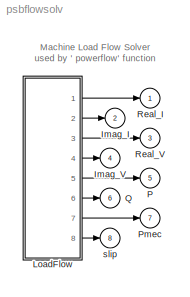
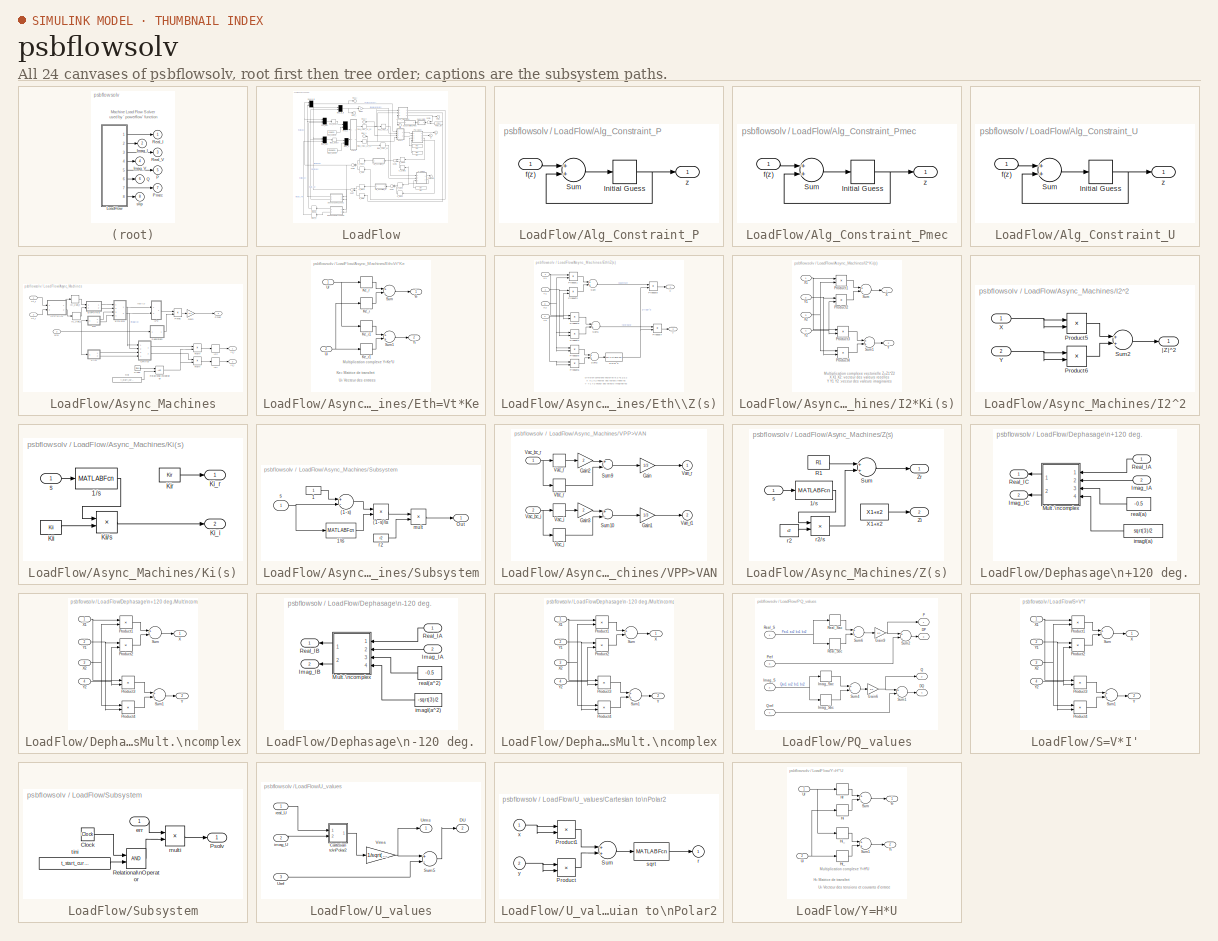
[diagram: thumbnail index - all 24 canvases of the model, root first then tree order]
MODEL psbflowsolv
KIND model
BLOCK [Outport] Imag_I
  IconDisplay = Port number
  InitialOutput = 0
  Port = 2
BLOCK [Outport] Imag_V
  IconDisplay = Port number
  InitialOutput = 0
  Port = 4
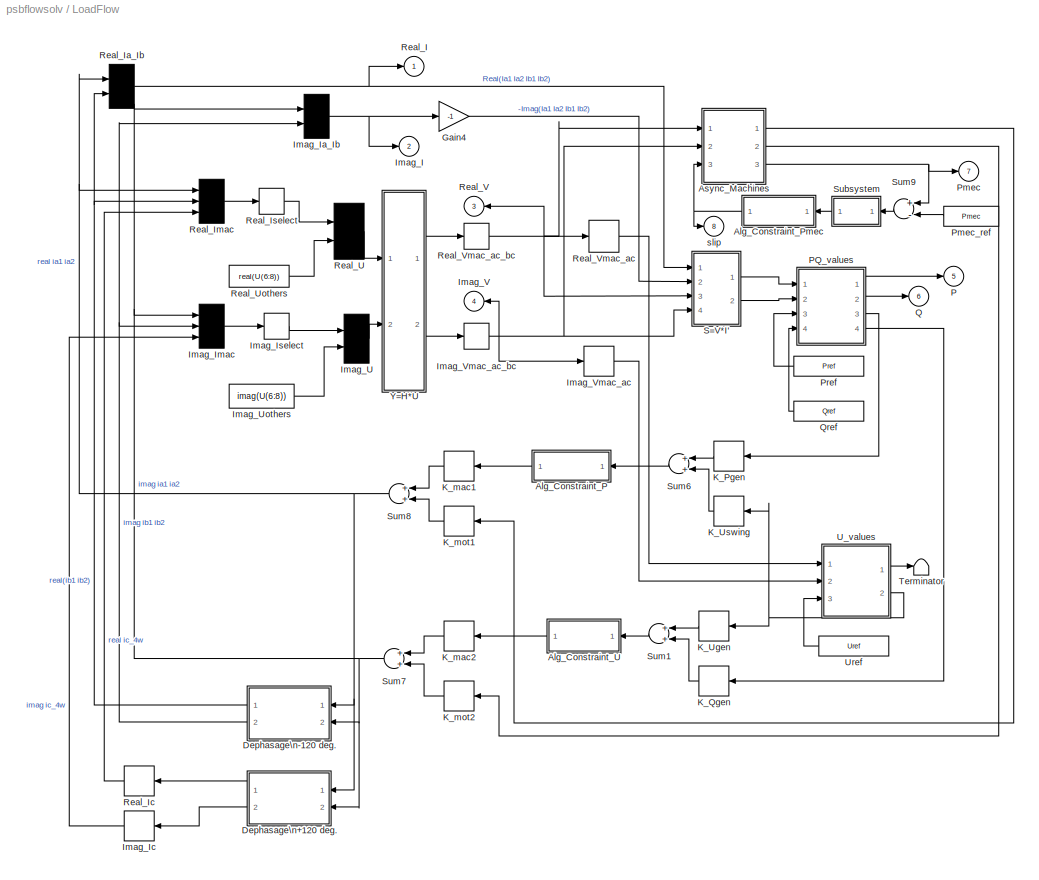
BLOCK [SubSystem] LoadFlow
  MinAlgLoopOccurrences = off
  Ports = [0, 8]
  RTWSystemCode = Auto
  TreatAsAtomicUnit = off
BLOCK [SubSystem] LoadFlow/Alg_Constraint_P
  MaskDescription = Constrains input signal f(z) to zero and outputs an algebraic state z. This block outputs the value necessary to produce a zero at the input. The output must affect the input through some feedback path. Provide an initial guess of the output to improve algebraic loop solver efficiency.  <repeated x3 — deduplicated; at blocks: Alg_Constraint_P, Alg_Constraint_Pmec, Alg_Constraint_U>
  MaskDisplay = disp('Solve\\nf(z) = 0')
  MaskEnableString = on
  MaskHelp = This block outputs the value necessary to produce a zero at the input. The output must affect the input through some feedback path. This allows you to specify algebraic equations for index 1 differential/algebraic systems (DAE's).\n                                                                                                                                                                        ...<+230ch>  <repeated x3 — deduplicated; at blocks: Alg_Constraint_P, Alg_Constraint_Pmec, Alg_Constraint_U>
  MaskIconFrame = on
  MaskIconOpaque = off
  MaskIconRotate = none
  MaskIconUnits = autoscale
  MaskPromptString = Initial guess:
  MaskStyleString = edit
  MaskToolTipString = on
  MaskTunableValueString = on
  MaskType = Algebraic Constraint
  MaskValueString = real_current_guess
  MaskVariables = z0=@1;
  MaskVisibilityString = on
  MinAlgLoopOccurrences = off
  Ports = [1, 1]
  RTWSystemCode = Auto
  TreatAsAtomicUnit = off
BLOCK [InitialCondition] LoadFlow/Alg_Constraint_P/Initial Guess
  Value = z0
BLOCK [Sum] LoadFlow/Alg_Constraint_P/Sum
  Ports = [2, 1]
BLOCK [Inport] LoadFlow/Alg_Constraint_P/f(z)
  IconDisplay = Port number
  LatchInput = off
  Port = 1
BLOCK [Outport] LoadFlow/Alg_Constraint_P/z
  IconDisplay = Port number
  InitialOutput = 0
BLOCK [SubSystem] LoadFlow/Alg_Constraint_Pmec
  MaskDisplay = disp('Solve\\nf(z) = 0')
  MaskEnableString = on
  MaskIconFrame = on
  MaskIconOpaque = off
  MaskIconRotate = none
  MaskIconUnits = autoscale
  MaskPromptString = Initial guess:
  MaskStyleString = edit
  MaskToolTipString = on
  MaskTunableValueString = on
  MaskType = Algebraic Constraint
  MaskValueString = slip_guess
  MaskVariables = z0=@1;
  MaskVisibilityString = on
  MinAlgLoopOccurrences = off
  Ports = [1, 1]
  RTWSystemCode = Auto
  TreatAsAtomicUnit = off
BLOCK [InitialCondition] LoadFlow/Alg_Constraint_Pmec/Initial Guess
  Value = z0
BLOCK [Sum] LoadFlow/Alg_Constraint_Pmec/Sum
  Ports = [2, 1]
BLOCK [Inport] LoadFlow/Alg_Constraint_Pmec/f(z)
  IconDisplay = Port number
  LatchInput = off
  Port = 1
BLOCK [Outport] LoadFlow/Alg_Constraint_Pmec/z
  IconDisplay = Port number
  InitialOutput = 0
BLOCK [SubSystem] LoadFlow/Alg_Constraint_U
  MaskDisplay = disp('Solve\\nf(z) = 0')
  MaskEnableString = on
  MaskIconFrame = on
  MaskIconOpaque = off
  MaskIconRotate = none
  MaskIconUnits = autoscale
  MaskPromptString = Initial guess:
  MaskStyleString = edit
  MaskToolTipString = on
  MaskTunableValueString = on
  MaskType = Algebraic Constraint
  MaskValueString = imag_current_guess
  MaskVariables = z0=@1;
  MaskVisibilityString = on
  MinAlgLoopOccurrences = off
  Ports = [1, 1]
  RTWSystemCode = Auto
  TreatAsAtomicUnit = off
BLOCK [InitialCondition] LoadFlow/Alg_Constraint_U/Initial Guess
  Value = z0
BLOCK [Sum] LoadFlow/Alg_Constraint_U/Sum
  Ports = [2, 1]
BLOCK [Inport] LoadFlow/Alg_Constraint_U/f(z)
  IconDisplay = Port number
  LatchInput = off
  Port = 1
BLOCK [Outport] LoadFlow/Alg_Constraint_U/z
  IconDisplay = Port number
  InitialOutput = 0
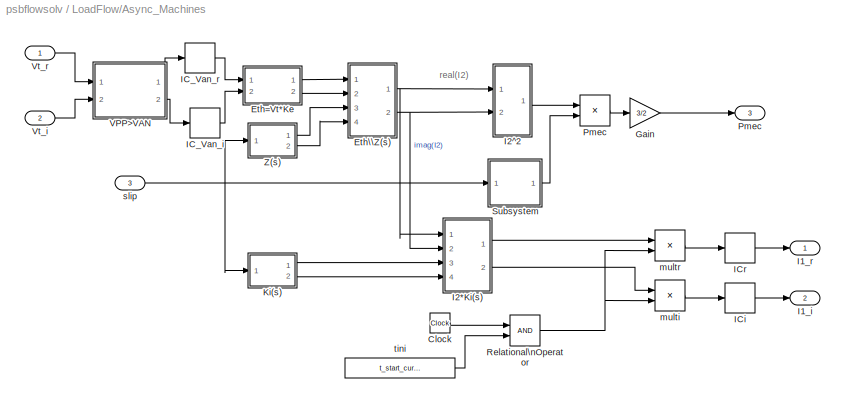
BLOCK [SubSystem] LoadFlow/Async_Machines
  MinAlgLoopOccurrences = off
  Ports = [3, 3]
  RTWSystemCode = Auto
  TreatAsAtomicUnit = off
BLOCK [Clock] LoadFlow/Async_Machines/Clock
  Decimation = 10
BLOCK [SubSystem] LoadFlow/Async_Machines/Eth=Vt*Ke
  MaskDisplay = disp('Y=H*U')
  MaskIconFrame = on
  MaskIconOpaque = off
  MaskIconRotate = none
  MaskIconUnits = autoscale
  MinAlgLoopOccurrences = off
  Ports = [2, 2]
  RTWSystemCode = Auto
  TreatAsAtomicUnit = off
BLOCK [StateSpace] LoadFlow/Async_Machines/Eth=Vt*Ke/Ke_i
  A = []
  B = []
  C = []
  D = K
  MaskDescription = Matrix Gain.
  MaskDisplay = disp('K')
  MaskEnableString = on
  MaskHelp = Multiplies input vector by entered matrix to produce output vector (y=Au).
  MaskIconFrame = on
  MaskIconOpaque = on
  MaskIconRotate = none
  MaskIconUnits = autoscale
  MaskInitialization = K=@1;
  MaskPromptString = Gain matrix:
  MaskStyleString = edit
  MaskToolTipString = on
  MaskTunableValueString = on
  MaskType = Matrix Gain
  MaskValueString = imag(Ke)
  MaskVisibilityString = on
BLOCK [StateSpace] LoadFlow/Async_Machines/Eth=Vt*Ke/Ke_i1
  A = []
  B = []
  C = []
  D = K
  MaskDescription = Matrix Gain.
  MaskDisplay = disp('K')
  MaskEnableString = on
  MaskHelp = Multiplies input vector by entered matrix to produce output vector (y=Au).
  MaskIconFrame = on
  MaskIconOpaque = on
  MaskIconRotate = none
  MaskIconUnits = autoscale
  MaskInitialization = K=@1;
  MaskPromptString = Gain matrix:
  MaskStyleString = edit
  MaskToolTipString = on
  MaskTunableValueString = on
  MaskType = Matrix Gain
  MaskValueString = imag(Ke)
  MaskVisibilityString = on
BLOCK [StateSpace] LoadFlow/Async_Machines/Eth=Vt*Ke/Ke_r
  A = []
  B = []
  C = []
  D = K
  MaskDescription = Matrix Gain.
  MaskDisplay = disp('K')
  MaskEnableString = on
  MaskHelp = Multiplies input vector by entered matrix to produce output vector (y=Au).
  MaskIconFrame = on
  MaskIconOpaque = on
  MaskIconRotate = none
  MaskIconUnits = autoscale
  MaskInitialization = K=@1;
  MaskPromptString = Gain matrix:
  MaskStyleString = edit
  MaskToolTipString = on
  MaskTunableValueString = on
  MaskType = Matrix Gain
  MaskValueString = real(Ke)
  MaskVisibilityString = on
BLOCK [StateSpace] LoadFlow/Async_Machines/Eth=Vt*Ke/Ke_r1
  A = []
  B = []
  C = []
  D = K
  MaskDescription = Matrix Gain.
  MaskDisplay = disp('K')
  MaskEnableString = on
  MaskHelp = Multiplies input vector by entered matrix to produce output vector (y=Au).
  MaskIconFrame = on
  MaskIconOpaque = on
  MaskIconRotate = none
  MaskIconUnits = autoscale
  MaskInitialization = K=@1;
  MaskPromptString = Gain matrix:
  MaskStyleString = edit
  MaskToolTipString = on
  MaskTunableValueString = on
  MaskType = Matrix Gain
  MaskValueString = real(Ke)
  MaskVisibilityString = on
BLOCK [Sum] LoadFlow/Async_Machines/Eth=Vt*Ke/Sum
  Inputs = +-
  Ports = [2, 1]
BLOCK [Sum] LoadFlow/Async_Machines/Eth=Vt*Ke/Sum1
  Ports = [2, 1]
BLOCK [Inport] LoadFlow/Async_Machines/Eth=Vt*Ke/Ui
  IconDisplay = Port number
  LatchInput = off
  Port = 2
BLOCK [Inport] LoadFlow/Async_Machines/Eth=Vt*Ke/Ur
  IconDisplay = Port number
  LatchInput = off
  Port = 1
BLOCK [Outport] LoadFlow/Async_Machines/Eth=Vt*Ke/Yi
  IconDisplay = Port number
  InitialOutput = 0
  Port = 2
BLOCK [Outport] LoadFlow/Async_Machines/Eth=Vt*Ke/Yr
  IconDisplay = Port number
  InitialOutput = 0
BLOCK [SubSystem] LoadFlow/Async_Machines/Eth\\Z(s)
  MaskDisplay = disp('Z1./Z2')
  MaskIconFrame = on
  MaskIconOpaque = off
  MaskIconRotate = none
  MaskIconUnits = autoscale
  MinAlgLoopOccurrences = off
  Ports = [4, 2]
  RTWSystemCode = Auto
  TreatAsAtomicUnit = off
BLOCK [MATLABFcn] LoadFlow/Async_Machines/Eth\\Z(s)/1//|Z2|^2
  MATLABFcn = 1./u
BLOCK [Product] LoadFlow/Async_Machines/Eth\\Z(s)/Product1
  Ports = [2, 1]
  RndMeth = Floor
BLOCK [Product] LoadFlow/Async_Machines/Eth\\Z(s)/Product2
  Ports = [2, 1]
  RndMeth = Floor
BLOCK [Product] LoadFlow/Async_Machines/Eth\\Z(s)/Product3
  Ports = [2, 1]
  RndMeth = Floor
BLOCK [Product] LoadFlow/Async_Machines/Eth\\Z(s)/Product4
  Ports = [2, 1]
  RndMeth = Floor
BLOCK [Product] LoadFlow/Async_Machines/Eth\\Z(s)/Product5
  Ports = [2, 1]
  RndMeth = Floor
BLOCK [Product] LoadFlow/Async_Machines/Eth\\Z(s)/Product6
  Ports = [2, 1]
  RndMeth = Floor
BLOCK [Product] LoadFlow/Async_Machines/Eth\\Z(s)/Product7
  Ports = [2, 1]
  RndMeth = Floor
BLOCK [Product] LoadFlow/Async_Machines/Eth\\Z(s)/Product8
  Ports = [2, 1]
  RndMeth = Floor
BLOCK [Sum] LoadFlow/Async_Machines/Eth\\Z(s)/Sum
  Ports = [2, 1]
BLOCK [Sum] LoadFlow/Async_Machines/Eth\\Z(s)/Sum1
  Inputs = -+
  Ports = [2, 1]
BLOCK [Sum] LoadFlow/Async_Machines/Eth\\Z(s)/Sum2
  Ports = [2, 1]
BLOCK [Outport] LoadFlow/Async_Machines/Eth\\Z(s)/X
  IconDisplay = Port number
  InitialOutput = 0
BLOCK [Inport] LoadFlow/Async_Machines/Eth\\Z(s)/X1
  IconDisplay = Port number
  LatchInput = off
  Port = 1
BLOCK [Inport] LoadFlow/Async_Machines/Eth\\Z(s)/X2
  IconDisplay = Port number
  LatchInput = off
  Port = 3
BLOCK [Outport] LoadFlow/Async_Machines/Eth\\Z(s)/Y
  IconDisplay = Port number
  InitialOutput = 0
  Port = 2
BLOCK [Inport] LoadFlow/Async_Machines/Eth\\Z(s)/Y1
  IconDisplay = Port number
  LatchInput = off
  Port = 2
BLOCK [Inport] LoadFlow/Async_Machines/Eth\\Z(s)/Y2
  IconDisplay = Port number
  LatchInput = off
  Port = 4
BLOCK [Gain] LoadFlow/Async_Machines/Gain
  Gain = 3/2
BLOCK [Outport] LoadFlow/Async_Machines/I1_i
  IconDisplay = Port number
  InitialOutput = 0
  Port = 2
BLOCK [Outport] LoadFlow/Async_Machines/I1_r
  IconDisplay = Port number
  InitialOutput = 0
BLOCK [SubSystem] LoadFlow/Async_Machines/I2*Ki(s)
  MaskDisplay = disp('Z1.*Z2')
  MaskIconFrame = on
  MaskIconOpaque = off
  MaskIconRotate = none
  MaskIconUnits = autoscale
  MinAlgLoopOccurrences = off
  Ports = [4, 2]
  RTWSystemCode = Auto
  TreatAsAtomicUnit = off
BLOCK [Product] LoadFlow/Async_Machines/I2*Ki(s)/Product1
  Ports = [2, 1]
  RndMeth = Floor
BLOCK [Product] LoadFlow/Async_Machines/I2*Ki(s)/Product2
  Ports = [2, 1]
  RndMeth = Floor
BLOCK [Product] LoadFlow/Async_Machines/I2*Ki(s)/Product3
  Ports = [2, 1]
  RndMeth = Floor
BLOCK [Product] LoadFlow/Async_Machines/I2*Ki(s)/Product4
  Ports = [2, 1]
  RndMeth = Floor
BLOCK [Sum] LoadFlow/Async_Machines/I2*Ki(s)/Sum
  Inputs = +-
  Ports = [2, 1]
BLOCK [Sum] LoadFlow/Async_Machines/I2*Ki(s)/Sum1
  Ports = [2, 1]
BLOCK [Outport] LoadFlow/Async_Machines/I2*Ki(s)/X
  IconDisplay = Port number
  InitialOutput = 0
BLOCK [Inport] LoadFlow/Async_Machines/I2*Ki(s)/X1
  IconDisplay = Port number
  LatchInput = off
  Port = 1
BLOCK [Inport] LoadFlow/Async_Machines/I2*Ki(s)/X2
  IconDisplay = Port number
  LatchInput = off
  Port = 3
BLOCK [Outport] LoadFlow/Async_Machines/I2*Ki(s)/Y
  IconDisplay = Port number
  InitialOutput = 0
  Port = 2
BLOCK [Inport] LoadFlow/Async_Machines/I2*Ki(s)/Y1
  IconDisplay = Port number
  LatchInput = off
  Port = 2
BLOCK [Inport] LoadFlow/Async_Machines/I2*Ki(s)/Y2
  IconDisplay = Port number
  LatchInput = off
  Port = 4
BLOCK [SubSystem] LoadFlow/Async_Machines/I2^2
  MaskIconFrame = on
  MaskIconOpaque = off
  MaskIconRotate = none
  MaskIconUnits = autoscale
  MinAlgLoopOccurrences = off
  Ports = [2, 1]
  RTWSystemCode = Auto
  TreatAsAtomicUnit = off
BLOCK [Product] LoadFlow/Async_Machines/I2^2/Product5
  Ports = [2, 1]
  RndMeth = Floor
BLOCK [Product] LoadFlow/Async_Machines/I2^2/Product6
  Ports = [2, 1]
  RndMeth = Floor
BLOCK [Sum] LoadFlow/Async_Machines/I2^2/Sum2
  Ports = [2, 1]
BLOCK [Inport] LoadFlow/Async_Machines/I2^2/X
  IconDisplay = Port number
  LatchInput = off
  Port = 1
BLOCK [Inport] LoadFlow/Async_Machines/I2^2/Y
  IconDisplay = Port number
  LatchInput = off
  Port = 2
BLOCK [Outport] LoadFlow/Async_Machines/I2^2/|Z|^2
  IconDisplay = Port number
  InitialOutput = 0
BLOCK [InitialCondition] LoadFlow/Async_Machines/IC_Van_i
  Value = imag_Van_init
BLOCK [InitialCondition] LoadFlow/Async_Machines/IC_Van_r
  Value = real_Van_init
BLOCK [InitialCondition] LoadFlow/Async_Machines/ICi
  Value = 0
BLOCK [InitialCondition] LoadFlow/Async_Machines/ICr
  Value = 0
BLOCK [SubSystem] LoadFlow/Async_Machines/Ki(s)
  MinAlgLoopOccurrences = off
  Ports = [1, 2]
  RTWSystemCode = Auto
  TreatAsAtomicUnit = off
BLOCK [MATLABFcn] LoadFlow/Async_Machines/Ki(s)/1//s
  MATLABFcn = 1./u
BLOCK [Outport] LoadFlow/Async_Machines/Ki(s)/Ki_i
  IconDisplay = Port number
  InitialOutput = 0
  Port = 2
BLOCK [Outport] LoadFlow/Async_Machines/Ki(s)/Ki_r
  IconDisplay = Port number
  InitialOutput = 0
BLOCK [Constant] LoadFlow/Async_Machines/Ki(s)/Kii
  Value = Kii
BLOCK [Product] LoadFlow/Async_Machines/Ki(s)/Kii//s
  Ports = [2, 1]
  RndMeth = Floor
BLOCK [Constant] LoadFlow/Async_Machines/Ki(s)/Kir
  Value = Kir
BLOCK [Inport] LoadFlow/Async_Machines/Ki(s)/s
  IconDisplay = Port number
  LatchInput = off
  Port = 1
BLOCK [Outport] LoadFlow/Async_Machines/Pmec
  IconDisplay = Port number
  InitialOutput = 0
  Port = 3
BLOCK [Product] LoadFlow/Async_Machines/Pmec 
  Ports = [2, 1]
  RndMeth = Floor
BLOCK [RelationalOperator] LoadFlow/Async_Machines/Relational\nOperator
BLOCK [SubSystem] LoadFlow/Async_Machines/Subsystem
  MaskDisplay = disp('r2(1-s)/s')
  MaskIconFrame = on
  MaskIconOpaque = on
  MaskIconRotate = none
  MaskIconUnits = autoscale
  MinAlgLoopOccurrences = off
  Ports = [1, 1]
  RTWSystemCode = Auto
  TreatAsAtomicUnit = off
BLOCK [Sum] LoadFlow/Async_Machines/Subsystem/(1-s)
  Inputs = +-
  Ports = [2, 1]
BLOCK [Product] LoadFlow/Async_Machines/Subsystem/(1-s)\\s
  Ports = [2, 1]
  RndMeth = Floor
BLOCK [Constant] LoadFlow/Async_Machines/Subsystem/1
BLOCK [MATLABFcn] LoadFlow/Async_Machines/Subsystem/1\\s
  MATLABFcn = 1./u
BLOCK [Outport] LoadFlow/Async_Machines/Subsystem/Out
  IconDisplay = Port number
  InitialOutput = 0
BLOCK [Product] LoadFlow/Async_Machines/Subsystem/mult
  Ports = [2, 1]
  RndMeth = Floor
BLOCK [Constant] LoadFlow/Async_Machines/Subsystem/r2
  Value = r2
BLOCK [Inport] LoadFlow/Async_Machines/Subsystem/s
  IconDisplay = Port number
  LatchInput = off
  Port = 1
BLOCK [SubSystem] LoadFlow/Async_Machines/VPP>VAN
  MinAlgLoopOccurrences = off
  Ports = [2, 2]
  RTWSystemCode = Auto
  TreatAsAtomicUnit = off
BLOCK [Gain] LoadFlow/Async_Machines/VPP>VAN/Gain
  Gain = 1/3
BLOCK [Gain] LoadFlow/Async_Machines/VPP>VAN/Gain1
  Gain = 1/3
BLOCK [Gain] LoadFlow/Async_Machines/VPP>VAN/Gain2
  Gain = 2
BLOCK [Gain] LoadFlow/Async_Machines/VPP>VAN/Gain3
  Gain = 2
BLOCK [Sum] LoadFlow/Async_Machines/VPP>VAN/Sum10
  Inputs = +-
  Ports = [2, 1]
BLOCK [Sum] LoadFlow/Async_Machines/VPP>VAN/Sum9
  Inputs = +-
  Ports = [2, 1]
BLOCK [Inport] LoadFlow/Async_Machines/VPP>VAN/Vac_bc_i
  IconDisplay = Port number
  LatchInput = off
  Port = 2
BLOCK [Inport] LoadFlow/Async_Machines/VPP>VAN/Vac_bc_r
  IconDisplay = Port number
  LatchInput = off
  Port = 1
BLOCK [Selector] LoadFlow/Async_Machines/VPP>VAN/Vac_i
  Elements = 1:2
  InputPortWidth = 4
  Ports = [1, 1]
BLOCK [Selector] LoadFlow/Async_Machines/VPP>VAN/Vac_r
  Elements = 1:2
  InputPortWidth = 4
  Ports = [1, 1]
BLOCK [Outport] LoadFlow/Async_Machines/VPP>VAN/Van_r
  IconDisplay = Port number
  InitialOutput = 0
BLOCK [Outport] LoadFlow/Async_Machines/VPP>VAN/Van_r1
  IconDisplay = Port number
  InitialOutput = 0
  Port = 2
BLOCK [Selector] LoadFlow/Async_Machines/VPP>VAN/Vbc_i
  Elements = 3:4
  InputPortWidth = 4
  Ports = [1, 1]
BLOCK [Selector] LoadFlow/Async_Machines/VPP>VAN/Vbc_r
  Elements = 3:4
  InputPortWidth = 4
  Ports = [1, 1]
BLOCK [Inport] LoadFlow/Async_Machines/Vt_i
  IconDisplay = Port number
  LatchInput = off
  Port = 2
BLOCK [Inport] LoadFlow/Async_Machines/Vt_r
  IconDisplay = Port number
  LatchInput = off
  Port = 1
BLOCK [SubSystem] LoadFlow/Async_Machines/Z(s)
  MinAlgLoopOccurrences = off
  Ports = [1, 2]
  RTWSystemCode = Auto
  TreatAsAtomicUnit = off
BLOCK [MATLABFcn] LoadFlow/Async_Machines/Z(s)/1//s
  MATLABFcn = 1./u
BLOCK [Constant] LoadFlow/Async_Machines/Z(s)/R1
  Value = R1
BLOCK [Sum] LoadFlow/Async_Machines/Z(s)/Sum
  Ports = [2, 1]
BLOCK [Constant] LoadFlow/Async_Machines/Z(s)/X1+x2
  Value = X1+x2
BLOCK [Outport] LoadFlow/Async_Machines/Z(s)/Zi
  IconDisplay = Port number
  InitialOutput = 0
  Port = 2
BLOCK [Outport] LoadFlow/Async_Machines/Z(s)/Zr
  IconDisplay = Port number
  InitialOutput = 0
BLOCK [Constant] LoadFlow/Async_Machines/Z(s)/r2
  Value = r2
BLOCK [Product] LoadFlow/Async_Machines/Z(s)/r2//s
  Ports = [2, 1]
  RndMeth = Floor
BLOCK [Inport] LoadFlow/Async_Machines/Z(s)/s
  IconDisplay = Port number
  LatchInput = off
  Port = 1
BLOCK [Product] LoadFlow/Async_Machines/multi 
  Ports = [2, 1]
  RndMeth = Floor
BLOCK [Product] LoadFlow/Async_Machines/multr
  Ports = [2, 1]
  RndMeth = Floor
BLOCK [Inport] LoadFlow/Async_Machines/slip
  IconDisplay = Port number
  LatchInput = off
  Port = 3
BLOCK [Constant] LoadFlow/Async_Machines/tini
  Value = t_start_current_mot
BLOCK [SubSystem] LoadFlow/Dephasage\n+120 deg.
  MinAlgLoopOccurrences = off
  Ports = [2, 2]
  RTWSystemCode = Auto
  TreatAsAtomicUnit = off
BLOCK [Inport] LoadFlow/Dephasage\n+120 deg./Imag_IA
  IconDisplay = Port number
  LatchInput = off
  Port = 2
BLOCK [Outport] LoadFlow/Dephasage\n+120 deg./Imag_IC 
  IconDisplay = Port number
  InitialOutput = 0
  Port = 2
BLOCK [SubSystem] LoadFlow/Dephasage\n+120 deg./Mult.\ncomplex
  MaskDisplay = disp('Z1.*Z2')
  MaskIconFrame = on
  MaskIconOpaque = off
  MaskIconRotate = none
  MaskIconUnits = autoscale
  MinAlgLoopOccurrences = off
  Ports = [4, 2]
  RTWSystemCode = Auto
  TreatAsAtomicUnit = off
BLOCK [Product] LoadFlow/Dephasage\n+120 deg./Mult.\ncomplex/Product1
  Ports = [2, 1]
  RndMeth = Floor
BLOCK [Product] LoadFlow/Dephasage\n+120 deg./Mult.\ncomplex/Product2
  Ports = [2, 1]
  RndMeth = Floor
BLOCK [Product] LoadFlow/Dephasage\n+120 deg./Mult.\ncomplex/Product3
  Ports = [2, 1]
  RndMeth = Floor
BLOCK [Product] LoadFlow/Dephasage\n+120 deg./Mult.\ncomplex/Product4
  Ports = [2, 1]
  RndMeth = Floor
BLOCK [Sum] LoadFlow/Dephasage\n+120 deg./Mult.\ncomplex/Sum
  Inputs = +-
  Ports = [2, 1]
BLOCK [Sum] LoadFlow/Dephasage\n+120 deg./Mult.\ncomplex/Sum1
  Ports = [2, 1]
BLOCK [Outport] LoadFlow/Dephasage\n+120 deg./Mult.\ncomplex/X
  IconDisplay = Port number
  InitialOutput = 0
BLOCK [Inport] LoadFlow/Dephasage\n+120 deg./Mult.\ncomplex/X1
  IconDisplay = Port number
  LatchInput = off
  Port = 1
BLOCK [Inport] LoadFlow/Dephasage\n+120 deg./Mult.\ncomplex/X2
  IconDisplay = Port number
  LatchInput = off
  Port = 3
BLOCK [Outport] LoadFlow/Dephasage\n+120 deg./Mult.\ncomplex/Y
  IconDisplay = Port number
  InitialOutput = 0
  Port = 2
BLOCK [Inport] LoadFlow/Dephasage\n+120 deg./Mult.\ncomplex/Y1
  IconDisplay = Port number
  LatchInput = off
  Port = 2
BLOCK [Inport] LoadFlow/Dephasage\n+120 deg./Mult.\ncomplex/Y2
  IconDisplay = Port number
  LatchInput = off
  Port = 4
BLOCK [Inport] LoadFlow/Dephasage\n+120 deg./Real_IA
  IconDisplay = Port number
  LatchInput = off
  Port = 1
BLOCK [Outport] LoadFlow/Dephasage\n+120 deg./Real_IC 
  IconDisplay = Port number
  InitialOutput = 0
BLOCK [Constant] LoadFlow/Dephasage\n+120 deg./imagl(a)
  Value = sqrt(3)/2
BLOCK [Constant] LoadFlow/Dephasage\n+120 deg./real(a)
  Value = -0.5
BLOCK [SubSystem] LoadFlow/Dephasage\n-120 deg.
  MinAlgLoopOccurrences = off
  Ports = [2, 2]
  RTWSystemCode = Auto
  TreatAsAtomicUnit = off
BLOCK [Inport] LoadFlow/Dephasage\n-120 deg./Imag_IA
  IconDisplay = Port number
  LatchInput = off
  Port = 2
BLOCK [Outport] LoadFlow/Dephasage\n-120 deg./Imag_IB 
  IconDisplay = Port number
  InitialOutput = 0
  Port = 2
BLOCK [SubSystem] LoadFlow/Dephasage\n-120 deg./Mult.\ncomplex
  MaskDisplay = disp('Z1.*Z2')
  MaskIconFrame = on
  MaskIconOpaque = off
  MaskIconRotate = none
  MaskIconUnits = autoscale
  MinAlgLoopOccurrences = off
  Ports = [4, 2]
  RTWSystemCode = Auto
  TreatAsAtomicUnit = off
BLOCK [Product] LoadFlow/Dephasage\n-120 deg./Mult.\ncomplex/Product1
  Ports = [2, 1]
  RndMeth = Floor
BLOCK [Product] LoadFlow/Dephasage\n-120 deg./Mult.\ncomplex/Product2
  Ports = [2, 1]
  RndMeth = Floor
BLOCK [Product] LoadFlow/Dephasage\n-120 deg./Mult.\ncomplex/Product3
  Ports = [2, 1]
  RndMeth = Floor
BLOCK [Product] LoadFlow/Dephasage\n-120 deg./Mult.\ncomplex/Product4
  Ports = [2, 1]
  RndMeth = Floor
BLOCK [Sum] LoadFlow/Dephasage\n-120 deg./Mult.\ncomplex/Sum
  Inputs = +-
  Ports = [2, 1]
BLOCK [Sum] LoadFlow/Dephasage\n-120 deg./Mult.\ncomplex/Sum1
  Ports = [2, 1]
BLOCK [Outport] LoadFlow/Dephasage\n-120 deg./Mult.\ncomplex/X
  IconDisplay = Port number
  InitialOutput = 0
BLOCK [Inport] LoadFlow/Dephasage\n-120 deg./Mult.\ncomplex/X1
  IconDisplay = Port number
  LatchInput = off
  Port = 1
BLOCK [Inport] LoadFlow/Dephasage\n-120 deg./Mult.\ncomplex/X2
  IconDisplay = Port number
  LatchInput = off
  Port = 3
BLOCK [Outport] LoadFlow/Dephasage\n-120 deg./Mult.\ncomplex/Y
  IconDisplay = Port number
  InitialOutput = 0
  Port = 2
BLOCK [Inport] LoadFlow/Dephasage\n-120 deg./Mult.\ncomplex/Y1
  IconDisplay = Port number
  LatchInput = off
  Port = 2
BLOCK [Inport] LoadFlow/Dephasage\n-120 deg./Mult.\ncomplex/Y2
  IconDisplay = Port number
  LatchInput = off
  Port = 4
BLOCK [Inport] LoadFlow/Dephasage\n-120 deg./Real_IA
  IconDisplay = Port number
  LatchInput = off
  Port = 1
BLOCK [Outport] LoadFlow/Dephasage\n-120 deg./Real_IB 
  IconDisplay = Port number
  InitialOutput = 0
BLOCK [Constant] LoadFlow/Dephasage\n-120 deg./imagl(a^2)
  Value = -sqrt(3)/2
BLOCK [Constant] LoadFlow/Dephasage\n-120 deg./real(a^2)
  Value = -0.5
BLOCK [Gain] LoadFlow/Gain4
  Gain = -1
BLOCK [Outport] LoadFlow/Imag_I
  IconDisplay = Port number
  InitialOutput = 0
  Port = 2
BLOCK [Mux] LoadFlow/Imag_Ia_Ib
  Inputs = [2 2]
  Ports = [2, 1]
BLOCK [Selector] LoadFlow/Imag_Ic
  Elements = [1]
  InputPortWidth = 2
  Ports = [1, 1]
BLOCK [Mux] LoadFlow/Imag_Imac
  Inputs = [2 2 1]
  Ports = [3, 1]
BLOCK [Selector] LoadFlow/Imag_Iselect
  Elements = [1:5]
  InputPortWidth = 5
  Ports = [1, 1]
BLOCK [Mux] LoadFlow/Imag_U
  Inputs = [5 3]
  Ports = [2, 1]
BLOCK [Constant] LoadFlow/Imag_Uothers
  Value = imag(U(6:8))
BLOCK [Outport] LoadFlow/Imag_V
  IconDisplay = Port number
  InitialOutput = 0
  Port = 4
BLOCK [Selector] LoadFlow/Imag_Vmac_ac
  Elements = 1:2
  InputPortWidth = 4
  Ports = [1, 1]
BLOCK [Selector] LoadFlow/Imag_Vmac_ac_bc
  Elements = 1:4
  InputPortWidth = 9
  Ports = [1, 1]
BLOCK [StateSpace] LoadFlow/K_Pgen
  A = []
  B = []
  C = []
  D = K
  MaskDescription = Matrix Gain.
  MaskDisplay = disp('K')
  MaskEnableString = on
  MaskHelp = Multiplies input vector by entered matrix to produce output vector (y=Au).
  MaskIconFrame = on
  MaskIconOpaque = on
  MaskIconRotate = none
  MaskIconUnits = autoscale
  MaskInitialization = K=@1;
  MaskPromptString = Gain matrix:
  MaskStyleString = edit
  MaskToolTipString = on
  MaskTunableValueString = on
  MaskType = Matrix Gain
  MaskValueString = [0 0;0 1]
  MaskVisibilityString = on
BLOCK [StateSpace] LoadFlow/K_Qgen
  A = []
  B = []
  C = []
  D = K
  MaskDescription = Matrix Gain.
  MaskDisplay = disp('K')
  MaskEnableString = on
  MaskHelp = Multiplies input vector by entered matrix to produce output vector (y=Au).
  MaskIconFrame = on
  MaskIconOpaque = on
  MaskIconRotate = none
  MaskIconUnits = autoscale
  MaskInitialization = K=@1;
  MaskPromptString = Gain matrix:
  MaskStyleString = edit
  MaskToolTipString = on
  MaskTunableValueString = on
  MaskType = Matrix Gain
  MaskValueString = [0 0;0 1]
  MaskVisibilityString = on
BLOCK [StateSpace] LoadFlow/K_Ugen
  A = []
  B = []
  C = []
  D = K
  MaskDescription = Matrix Gain.
  MaskDisplay = disp('K')
  MaskEnableString = on
  MaskHelp = Multiplies input vector by entered matrix to produce output vector (y=Au).
  MaskIconFrame = on
  MaskIconOpaque = on
  MaskIconRotate = none
  MaskIconUnits = autoscale
  MaskInitialization = K=@1;
  MaskPromptString = Gain matrix:
  MaskStyleString = edit
  MaskToolTipString = on
  MaskTunableValueString = on
  MaskType = Matrix Gain
  MaskValueString = [0 0;0 0]
  MaskVisibilityString = on
BLOCK [StateSpace] LoadFlow/K_Uswing
  A = []
  B = []
  C = []
  D = K
  MaskDescription = Matrix Gain.
  MaskDisplay = disp('K')
  MaskEnableString = on
  MaskHelp = Multiplies input vector by entered matrix to produce output vector (y=Au).
  MaskIconFrame = on
  MaskIconOpaque = on
  MaskIconRotate = none
  MaskIconUnits = autoscale
  MaskInitialization = K=@1;
  MaskPromptString = Gain matrix:
  MaskStyleString = edit
  MaskToolTipString = on
  MaskTunableValueString = on
  MaskType = Matrix Gain
  MaskValueString = [1 0;0 0]
  MaskVisibilityString = on
BLOCK [StateSpace] LoadFlow/K_mac1
  A = []
  B = []
  C = []
  D = K
  MaskDescription = Matrix Gain.
  MaskDisplay = disp('K')
  MaskEnableString = on
  MaskHelp = Multiplies input vector by entered matrix to produce output vector (y=Au).
  MaskIconFrame = on
  MaskIconOpaque = on
  MaskIconRotate = none
  MaskIconUnits = autoscale
  MaskInitialization = K=@1;
  MaskPromptString = Gain matrix:
  MaskStyleString = edit
  MaskToolTipString = on
  MaskTunableValueString = on
  MaskType = Matrix Gain
  MaskValueString = [1 0;0 1]
  MaskVisibilityString = on
BLOCK [StateSpace] LoadFlow/K_mac2
  A = []
  B = []
  C = []
  D = K
  MaskDescription = Matrix Gain.
  MaskDisplay = disp('K')
  MaskEnableString = on
  MaskHelp = Multiplies input vector by entered matrix to produce output vector (y=Au).
  MaskIconFrame = on
  MaskIconOpaque = on
  MaskIconRotate = none
  MaskIconUnits = autoscale
  MaskInitialization = K=@1;
  MaskPromptString = Gain matrix:
  MaskStyleString = edit
  MaskToolTipString = on
  MaskTunableValueString = on
  MaskType = Matrix Gain
  MaskValueString = [1 0;0 1]
  MaskVisibilityString = on
BLOCK [StateSpace] LoadFlow/K_mot1
  A = []
  B = []
  C = []
  D = K
  MaskDescription = Matrix Gain.
  MaskDisplay = disp('K')
  MaskEnableString = on
  MaskHelp = Multiplies input vector by entered matrix to produce output vector (y=Au).
  MaskIconFrame = on
  MaskIconOpaque = on
  MaskIconRotate = none
  MaskIconUnits = autoscale
  MaskInitialization = K=@1;
  MaskPromptString = Gain matrix:
  MaskStyleString = edit
  MaskToolTipString = on
  MaskTunableValueString = on
  MaskType = Matrix Gain
  MaskValueString = [0 0;0 0]
  MaskVisibilityString = on
BLOCK [StateSpace] LoadFlow/K_mot2
  A = []
  B = []
  C = []
  D = K
  MaskDescription = Matrix Gain.
  MaskDisplay = disp('K')
  MaskEnableString = on
  MaskHelp = Multiplies input vector by entered matrix to produce output vector (y=Au).
  MaskIconFrame = on
  MaskIconOpaque = on
  MaskIconRotate = none
  MaskIconUnits = autoscale
  MaskInitialization = K=@1;
  MaskPromptString = Gain matrix:
  MaskStyleString = edit
  MaskToolTipString = on
  MaskTunableValueString = on
  MaskType = Matrix Gain
  MaskValueString = [0 0;0 0]
  MaskVisibilityString = on
BLOCK [Outport] LoadFlow/P
  IconDisplay = Port number
  InitialOutput = 0
  Port = 5
BLOCK [SubSystem] LoadFlow/PQ_values
  MinAlgLoopOccurrences = off
  Ports = [4, 4]
  RTWSystemCode = Auto
  TreatAsAtomicUnit = off
BLOCK [Outport] LoadFlow/PQ_values/DP
  IconDisplay = Port number
  InitialOutput = 0
  Port = 3
BLOCK [Outport] LoadFlow/PQ_values/DQ
  IconDisplay = Port number
  InitialOutput = 0
  Port = 4
BLOCK [Gain] LoadFlow/PQ_values/Gain6
  Gain = 1/2
BLOCK [Gain] LoadFlow/PQ_values/Gain9
  Gain = 1/2
BLOCK [Inport] LoadFlow/PQ_values/Imag_S
  IconDisplay = Port number
  LatchInput = off
  Port = 2
BLOCK [Selector] LoadFlow/PQ_values/Imag_Sac
  Elements = 1:2
  InputPortWidth = 4
  Ports = [1, 1]
BLOCK [Selector] LoadFlow/PQ_values/Imag_Sbc
  Elements = 3:4
  InputPortWidth = 4
  Ports = [1, 1]
BLOCK [Outport] LoadFlow/PQ_values/P
  IconDisplay = Port number
  InitialOutput = 0
BLOCK [Inport] LoadFlow/PQ_values/Pref
  IconDisplay = Port number
  LatchInput = off
  Port = 3
BLOCK [Outport] LoadFlow/PQ_values/Q
  IconDisplay = Port number
  InitialOutput = 0
  Port = 2
BLOCK [Inport] LoadFlow/PQ_values/Qref
  IconDisplay = Port number
  LatchInput = off
  Port = 4
BLOCK [Inport] LoadFlow/PQ_values/Real_S
  IconDisplay = Port number
  LatchInput = off
  Port = 1
BLOCK [Selector] LoadFlow/PQ_values/Real_Sac
  Elements = 1:2
  InputPortWidth = 4
  Ports = [1, 1]
BLOCK [Selector] LoadFlow/PQ_values/Real_Sbc
  Elements = 3:4
  InputPortWidth = 4
  Ports = [1, 1]
BLOCK [Sum] LoadFlow/PQ_values/Sum1
  Inputs = +-
  Ports = [2, 1]
BLOCK [Sum] LoadFlow/PQ_values/Sum2
  Inputs = +-
  Ports = [2, 1]
BLOCK [Sum] LoadFlow/PQ_values/Sum4
  Ports = [2, 1]
BLOCK [Sum] LoadFlow/PQ_values/Sum6
  Ports = [2, 1]
BLOCK [Outport] LoadFlow/Pmec
  IconDisplay = Port number
  InitialOutput = 0
  Port = 7
BLOCK [Constant] LoadFlow/Pmec_ref
  Value = Pmec
BLOCK [Constant] LoadFlow/Pref
  Value = Pref
BLOCK [Outport] LoadFlow/Q
  IconDisplay = Port number
  InitialOutput = 0
  Port = 6
BLOCK [Constant] LoadFlow/Qref
  Value = Qref
BLOCK [Outport] LoadFlow/Real_I
  IconDisplay = Port number
  InitialOutput = 0
BLOCK [Mux] LoadFlow/Real_Ia_Ib
  Inputs = [2 2]
  Ports = [2, 1]
BLOCK [Selector] LoadFlow/Real_Ic
  Elements = [1]
  InputPortWidth = 2
  Ports = [1, 1]
BLOCK [Mux] LoadFlow/Real_Imac
  Inputs = [2 2 1]
  Ports = [3, 1]
BLOCK [Selector] LoadFlow/Real_Iselect
  Elements = [1:5]
  InputPortWidth = 5
  Ports = [1, 1]
BLOCK [Mux] LoadFlow/Real_U
  Inputs = [5 3]
  Ports = [2, 1]
BLOCK [Constant] LoadFlow/Real_Uothers
  Value = real(U(6:8))
BLOCK [Outport] LoadFlow/Real_V
  IconDisplay = Port number
  InitialOutput = 0
  Port = 3
BLOCK [Selector] LoadFlow/Real_Vmac_ac
  Elements = 1:2
  InputPortWidth = 4
  Ports = [1, 1]
BLOCK [Selector] LoadFlow/Real_Vmac_ac_bc
  Elements = 1:4
  InputPortWidth = 9
  Ports = [1, 1]
BLOCK [SubSystem] LoadFlow/S=V*I'
  MaskDisplay = disp('Z1.*Z2')
  MaskIconFrame = on
  MaskIconOpaque = off
  MaskIconRotate = none
  MaskIconUnits = autoscale
  MinAlgLoopOccurrences = off
  Ports = [4, 2]
  RTWSystemCode = Auto
  TreatAsAtomicUnit = off
BLOCK [Product] LoadFlow/S=V*I'/Product1
  Ports = [2, 1]
  RndMeth = Floor
BLOCK [Product] LoadFlow/S=V*I'/Product2
  Ports = [2, 1]
  RndMeth = Floor
BLOCK [Product] LoadFlow/S=V*I'/Product3
  Ports = [2, 1]
  RndMeth = Floor
BLOCK [Product] LoadFlow/S=V*I'/Product4
  Ports = [2, 1]
  RndMeth = Floor
BLOCK [Sum] LoadFlow/S=V*I'/Sum
  Inputs = +-
  Ports = [2, 1]
BLOCK [Sum] LoadFlow/S=V*I'/Sum1
  Ports = [2, 1]
BLOCK [Outport] LoadFlow/S=V*I'/X
  IconDisplay = Port number
  InitialOutput = 0
BLOCK [Inport] LoadFlow/S=V*I'/X1
  IconDisplay = Port number
  LatchInput = off
  Port = 1
BLOCK [Inport] LoadFlow/S=V*I'/X2
  IconDisplay = Port number
  LatchInput = off
  Port = 3
BLOCK [Outport] LoadFlow/S=V*I'/Y
  IconDisplay = Port number
  InitialOutput = 0
  Port = 2
BLOCK [Inport] LoadFlow/S=V*I'/Y1
  IconDisplay = Port number
  LatchInput = off
  Port = 2
BLOCK [Inport] LoadFlow/S=V*I'/Y2
  IconDisplay = Port number
  LatchInput = off
  Port = 4
BLOCK [SubSystem] LoadFlow/Subsystem
  MinAlgLoopOccurrences = off
  Ports = [1, 1]
  RTWSystemCode = Auto
  TreatAsAtomicUnit = off
BLOCK [Clock] LoadFlow/Subsystem/Clock
  Decimation = 10
BLOCK [Outport] LoadFlow/Subsystem/Psolv
  IconDisplay = Port number
  InitialOutput = 0
BLOCK [RelationalOperator] LoadFlow/Subsystem/Relational\nOperator
BLOCK [Inport] LoadFlow/Subsystem/err
  IconDisplay = Port number
  LatchInput = off
  Port = 1
BLOCK [Product] LoadFlow/Subsystem/multi 
  Ports = [2, 1]
  RndMeth = Floor
BLOCK [Constant] LoadFlow/Subsystem/tini
  Value = t_start_current_mot
BLOCK [Sum] LoadFlow/Sum1
  Ports = [2, 1]
BLOCK [Sum] LoadFlow/Sum6
  Ports = [2, 1]
BLOCK [Sum] LoadFlow/Sum7
  Ports = [2, 1]
BLOCK [Sum] LoadFlow/Sum8
  Ports = [2, 1]
BLOCK [Sum] LoadFlow/Sum9
  Inputs = +-
  Ports = [2, 1]
BLOCK [Terminator] LoadFlow/Terminator
BLOCK [SubSystem] LoadFlow/U_values
  MinAlgLoopOccurrences = off
  Ports = [3, 2]
  RTWSystemCode = Auto
  TreatAsAtomicUnit = off
BLOCK [SubSystem] LoadFlow/U_values/Cartesian to\nPolar2
  MaskDescription = Transformation from cartesian to polar coordinates.\n[x, y] -> [r, theta]\n\nr = sqrt(x^2 + y^2);\ntheta = atan(y/x);
  MaskDisplay = plot(0,0,100,100,[24,20,15,20,20],[85,95,85,95,20],[80,20,95,85,95,85],[70,20,20,15,20,24],[56,56,55,52,50,46],[20,26,31,35,38,42])
  MaskHelp = Unmask this block for more help.
  MaskIconFrame = on
  MaskIconOpaque = off
  MaskIconRotate = none
  MaskIconUnits = autoscale
  MaskType = Cart2Polar
  MinAlgLoopOccurrences = off
  Ports = [2, 1]
  RTWSystemCode = Auto
  TreatAsAtomicUnit = off
BLOCK [Product] LoadFlow/U_values/Cartesian to\nPolar2/Product
  Ports = [2, 1]
  RndMeth = Floor
BLOCK [Product] LoadFlow/U_values/Cartesian to\nPolar2/Product1
  Ports = [2, 1]
  RndMeth = Floor
BLOCK [Sum] LoadFlow/U_values/Cartesian to\nPolar2/Sum
  Ports = [2, 1]
BLOCK [Outport] LoadFlow/U_values/Cartesian to\nPolar2/r
  IconDisplay = Port number
  InitialOutput = 0
BLOCK [MATLABFcn] LoadFlow/U_values/Cartesian to\nPolar2/sqrt
  MATLABFcn = sqrt(u)
BLOCK [Inport] LoadFlow/U_values/Cartesian to\nPolar2/x
  IconDisplay = Port number
  LatchInput = off
  Port = 1
BLOCK [Inport] LoadFlow/U_values/Cartesian to\nPolar2/y
  IconDisplay = Port number
  LatchInput = off
  Port = 2
BLOCK [Outport] LoadFlow/U_values/DU
  IconDisplay = Port number
  InitialOutput = 0
  Port = 2
BLOCK [Sum] LoadFlow/U_values/Sum5
  Inputs = +-
  Ports = [2, 1]
BLOCK [Inport] LoadFlow/U_values/Uref
  IconDisplay = Port number
  LatchInput = off
  Port = 3
BLOCK [Outport] LoadFlow/U_values/Urms
  IconDisplay = Port number
  InitialOutput = 0
BLOCK [Gain] LoadFlow/U_values/Vrms
  Gain = 1/sqrt(2)
BLOCK [Inport] LoadFlow/U_values/imag_U
  IconDisplay = Port number
  LatchInput = off
  Port = 2
BLOCK [Inport] LoadFlow/U_values/real_U
  IconDisplay = Port number
  LatchInput = off
  Port = 1
BLOCK [Constant] LoadFlow/Uref
  Value = Uref
BLOCK [SubSystem] LoadFlow/Y=H*U
  MaskDisplay = disp('Y=H*U')
  MaskIconFrame = on
  MaskIconOpaque = off
  MaskIconRotate = none
  MaskIconUnits = autoscale
  MinAlgLoopOccurrences = off
  Ports = [2, 2]
  RTWSystemCode = Auto
  TreatAsAtomicUnit = off
BLOCK [StateSpace] LoadFlow/Y=H*U/Hi
  A = []
  B = []
  C = []
  D = K
  MaskDescription = Matrix Gain.
  MaskDisplay = disp('K')
  MaskEnableString = on
  MaskHelp = Multiplies input vector by entered matrix to produce output vector (y=Au).
  MaskIconFrame = on
  MaskIconOpaque = on
  MaskIconRotate = none
  MaskIconUnits = autoscale
  MaskInitialization = K=@1;
  MaskPromptString = Gain matrix:
  MaskStyleString = edit
  MaskToolTipString = on
  MaskTunableValueString = on
  MaskType = Matrix Gain
  MaskValueString = imag(H)
  MaskVisibilityString = on
BLOCK [StateSpace] LoadFlow/Y=H*U/Hi_
  A = []
  B = []
  C = []
  D = K
  MaskDescription = Matrix Gain.
  MaskDisplay = disp('K')
  MaskEnableString = on
  MaskHelp = Multiplies input vector by entered matrix to produce output vector (y=Au).
  MaskIconFrame = on
  MaskIconOpaque = on
  MaskIconRotate = none
  MaskIconUnits = autoscale
  MaskInitialization = K=@1;
  MaskPromptString = Gain matrix:
  MaskStyleString = edit
  MaskToolTipString = on
  MaskTunableValueString = on
  MaskType = Matrix Gain
  MaskValueString = imag(H)
  MaskVisibilityString = on
BLOCK [StateSpace] LoadFlow/Y=H*U/Hr
  A = []
  B = []
  C = []
  D = K
  MaskDescription = Matrix Gain.
  MaskDisplay = disp('K')
  MaskEnableString = on
  MaskHelp = Multiplies input vector by entered matrix to produce output vector (y=Au).
  MaskIconFrame = on
  MaskIconOpaque = on
  MaskIconRotate = none
  MaskIconUnits = autoscale
  MaskInitialization = K=@1;
  MaskPromptString = Gain matrix:
  MaskStyleString = edit
  MaskToolTipString = on
  MaskTunableValueString = on
  MaskType = Matrix Gain
  MaskValueString = real(H)
  MaskVisibilityString = on
BLOCK [StateSpace] LoadFlow/Y=H*U/Hr_
  A = []
  B = []
  C = []
  D = K
  MaskDescription = Matrix Gain.
  MaskDisplay = disp('K')
  MaskEnableString = on
  MaskHelp = Multiplies input vector by entered matrix to produce output vector (y=Au).
  MaskIconFrame = on
  MaskIconOpaque = on
  MaskIconRotate = none
  MaskIconUnits = autoscale
  MaskInitialization = K=@1;
  MaskPromptString = Gain matrix:
  MaskStyleString = edit
  MaskToolTipString = on
  MaskTunableValueString = on
  MaskType = Matrix Gain
  MaskValueString = real(H)
  MaskVisibilityString = on
BLOCK [Sum] LoadFlow/Y=H*U/Sum
  Inputs = +-
  Ports = [2, 1]
BLOCK [Sum] LoadFlow/Y=H*U/Sum1
  Ports = [2, 1]
BLOCK [Inport] LoadFlow/Y=H*U/Ui
  IconDisplay = Port number
  LatchInput = off
  Port = 2
BLOCK [Inport] LoadFlow/Y=H*U/Ur
  IconDisplay = Port number
  LatchInput = off
  Port = 1
BLOCK [Outport] LoadFlow/Y=H*U/Yi
  IconDisplay = Port number
  InitialOutput = 0
  Port = 2
BLOCK [Outport] LoadFlow/Y=H*U/Yr
  IconDisplay = Port number
  InitialOutput = 0
BLOCK [Outport] LoadFlow/slip
  IconDisplay = Port number
  InitialOutput = 0
  Port = 8
BLOCK [Outport] P
  IconDisplay = Port number
  InitialOutput = 0
  Port = 5
BLOCK [Outport] Pmec
  IconDisplay = Port number
  InitialOutput = 0
  Port = 7
BLOCK [Outport] Q
  IconDisplay = Port number
  InitialOutput = 0
  Port = 6
BLOCK [Outport] Real_I
  IconDisplay = Port number
  InitialOutput = 0
BLOCK [Outport] Real_V
  IconDisplay = Port number
  InitialOutput = 0
  Port = 3
BLOCK [Outport] slip
  IconDisplay = Port number
  InitialOutput = 0
  Port = 8
ANNOTATION (root): Machine Load Flow Solver\n used by ' powerflow' function
ANNOTATION LoadFlow/Async_Machines: real(I2)
ANNOTATION LoadFlow/Async_Machines/Eth=Vt*Ke: Ke= Matrice de transfert
ANNOTATION LoadFlow/Async_Machines/Eth=Vt*Ke: Multiplication complexe Y=Ke*U
ANNOTATION LoadFlow/Async_Machines/Eth=Vt*Ke: U= Vecteur des entrees
ANNOTATION LoadFlow/Async_Machines/Eth\\Z(s): Division complexe vectorielle Z=Z1/Z2\nX X1 X2 vecteur des valeurs reeelles\nY Y1 Y2 veceur des valeurs imaginaires
ANNOTATION LoadFlow/Async_Machines/I2*Ki(s): Multiplication complexe vectorielle Z=Z1*Z2\nX X1 X2: vecteur des valeurs reeelles\nY Y1 Y2 :veceur des valeurs imaginaires
ANNOTATION LoadFlow/Y=H*U: H= Matrice de transfert
ANNOTATION LoadFlow/Y=H*U: Multiplication complexe Y=H*U
ANNOTATION LoadFlow/Y=H*U: U= Vecteur des tensions et courants d'entree
NET LoadFlow/Alg_Constraint_P/Initial Guess:1 -> LoadFlow/Alg_Constraint_P/Sum:2, LoadFlow/Alg_Constraint_P/z:1
LINE LoadFlow/Alg_Constraint_P/Sum:1 -> LoadFlow/Alg_Constraint_P/Initial Guess:1
LINE LoadFlow/Alg_Constraint_P/f(z):1 -> LoadFlow/Alg_Constraint_P/Sum:1
LINE LoadFlow/Alg_Constraint_P:1 -> LoadFlow/K_mac1:1
NET LoadFlow/Alg_Constraint_Pmec/Initial Guess:1 -> LoadFlow/Alg_Constraint_Pmec/Sum:2, LoadFlow/Alg_Constraint_Pmec/z:1
LINE LoadFlow/Alg_Constraint_Pmec/Sum:1 -> LoadFlow/Alg_Constraint_Pmec/Initial Guess:1
LINE LoadFlow/Alg_Constraint_Pmec/f(z):1 -> LoadFlow/Alg_Constraint_Pmec/Sum:1
NET LoadFlow/Alg_Constraint_Pmec:1 -> LoadFlow/Async_Machines:3, LoadFlow/slip:1
NET LoadFlow/Alg_Constraint_U/Initial Guess:1 -> LoadFlow/Alg_Constraint_U/Sum:2, LoadFlow/Alg_Constraint_U/z:1
LINE LoadFlow/Alg_Constraint_U/Sum:1 -> LoadFlow/Alg_Constraint_U/Initial Guess:1
LINE LoadFlow/Alg_Constraint_U/f(z):1 -> LoadFlow/Alg_Constraint_U/Sum:1
LINE LoadFlow/Alg_Constraint_U:1 -> LoadFlow/K_mac2:1
LINE LoadFlow/Async_Machines/Clock:1 -> LoadFlow/Async_Machines/Relational\nOperator:1
LINE LoadFlow/Async_Machines/Eth=Vt*Ke/Ke_i1:1 -> LoadFlow/Async_Machines/Eth=Vt*Ke/Sum1:1
LINE LoadFlow/Async_Machines/Eth=Vt*Ke/Ke_i:1 -> LoadFlow/Async_Machines/Eth=Vt*Ke/Sum:2
LINE LoadFlow/Async_Machines/Eth=Vt*Ke/Ke_r1:1 -> LoadFlow/Async_Machines/Eth=Vt*Ke/Sum1:2
LINE LoadFlow/Async_Machines/Eth=Vt*Ke/Ke_r:1 -> LoadFlow/Async_Machines/Eth=Vt*Ke/Sum:1
LINE LoadFlow/Async_Machines/Eth=Vt*Ke/Sum1:1 -> LoadFlow/Async_Machines/Eth=Vt*Ke/Yi:1
LINE LoadFlow/Async_Machines/Eth=Vt*Ke/Sum:1 -> LoadFlow/Async_Machines/Eth=Vt*Ke/Yr:1
NET LoadFlow/Async_Machines/Eth=Vt*Ke/Ui:1 -> LoadFlow/Async_Machines/Eth=Vt*Ke/Ke_i:1, LoadFlow/Async_Machines/Eth=Vt*Ke/Ke_r1:1
NET LoadFlow/Async_Machines/Eth=Vt*Ke/Ur:1 -> LoadFlow/Async_Machines/Eth=Vt*Ke/Ke_i1:1, LoadFlow/Async_Machines/Eth=Vt*Ke/Ke_r:1
LINE LoadFlow/Async_Machines/Eth=Vt*Ke:1 -> LoadFlow/Async_Machines/Eth\\Z(s):1
LINE LoadFlow/Async_Machines/Eth=Vt*Ke:2 -> LoadFlow/Async_Machines/Eth\\Z(s):2
NET LoadFlow/Async_Machines/Eth\\Z(s)/1//|Z2|^2:1 -> LoadFlow/Async_Machines/Eth\\Z(s)/Product7:2, LoadFlow/Async_Machines/Eth\\Z(s)/Product8:2
LINE LoadFlow/Async_Machines/Eth\\Z(s)/Product1:1 -> LoadFlow/Async_Machines/Eth\\Z(s)/Sum:1
LINE LoadFlow/Async_Machines/Eth\\Z(s)/Product2:1 -> LoadFlow/Async_Machines/Eth\\Z(s)/Sum:2
LINE LoadFlow/Async_Machines/Eth\\Z(s)/Product3:1 -> LoadFlow/Async_Machines/Eth\\Z(s)/Sum1:1
LINE LoadFlow/Async_Machines/Eth\\Z(s)/Product4:1 -> LoadFlow/Async_Machines/Eth\\Z(s)/Sum1:2
LINE LoadFlow/Async_Machines/Eth\\Z(s)/Product5:1 -> LoadFlow/Async_Machines/Eth\\Z(s)/Sum2:1
LINE LoadFlow/Async_Machines/Eth\\Z(s)/Product6:1 -> LoadFlow/Async_Machines/Eth\\Z(s)/Sum2:2
LINE LoadFlow/Async_Machines/Eth\\Z(s)/Product7:1 -> LoadFlow/Async_Machines/Eth\\Z(s)/Y:1
LINE LoadFlow/Async_Machines/Eth\\Z(s)/Product8:1 -> LoadFlow/Async_Machines/Eth\\Z(s)/X:1
LINE LoadFlow/Async_Machines/Eth\\Z(s)/Sum1:1 -> LoadFlow/Async_Machines/Eth\\Z(s)/Product7:1
LINE LoadFlow/Async_Machines/Eth\\Z(s)/Sum2:1 -> LoadFlow/Async_Machines/Eth\\Z(s)/1//|Z2|^2:1
LINE LoadFlow/Async_Machines/Eth\\Z(s)/Sum:1 -> LoadFlow/Async_Machines/Eth\\Z(s)/Product8:1
NET LoadFlow/Async_Machines/Eth\\Z(s)/X1:1 -> LoadFlow/Async_Machines/Eth\\Z(s)/Product1:1, LoadFlow/Async_Machines/Eth\\Z(s)/Product3:1
NET LoadFlow/Async_Machines/Eth\\Z(s)/X2:1 -> LoadFlow/Async_Machines/Eth\\Z(s)/Product1:2, LoadFlow/Async_Machines/Eth\\Z(s)/Product4:1, LoadFlow/Async_Machines/Eth\\Z(s)/Product5:1, LoadFlow/Async_Machines/Eth\\Z(s)/Product5:2
NET LoadFlow/Async_Machines/Eth\\Z(s)/Y1:1 -> LoadFlow/Async_Machines/Eth\\Z(s)/Product2:1, LoadFlow/Async_Machines/Eth\\Z(s)/Product4:2
NET LoadFlow/Async_Machines/Eth\\Z(s)/Y2:1 -> LoadFlow/Async_Machines/Eth\\Z(s)/Product2:2, LoadFlow/Async_Machines/Eth\\Z(s)/Product3:2, LoadFlow/Async_Machines/Eth\\Z(s)/Product6:1, LoadFlow/Async_Machines/Eth\\Z(s)/Product6:2
NET LoadFlow/Async_Machines/Eth\\Z(s):1 -> LoadFlow/Async_Machines/I2*Ki(s):1, LoadFlow/Async_Machines/I2^2:1
NET LoadFlow/Async_Machines/Eth\\Z(s):2 -> LoadFlow/Async_Machines/I2*Ki(s):2, LoadFlow/Async_Machines/I2^2:2
LINE LoadFlow/Async_Machines/Gain:1 -> LoadFlow/Async_Machines/Pmec:1
LINE LoadFlow/Async_Machines/I2*Ki(s)/Product1:1 -> LoadFlow/Async_Machines/I2*Ki(s)/Sum:1
LINE LoadFlow/Async_Machines/I2*Ki(s)/Product2:1 -> LoadFlow/Async_Machines/I2*Ki(s)/Sum:2
LINE LoadFlow/Async_Machines/I2*Ki(s)/Product3:1 -> LoadFlow/Async_Machines/I2*Ki(s)/Sum1:1
LINE LoadFlow/Async_Machines/I2*Ki(s)/Product4:1 -> LoadFlow/Async_Machines/I2*Ki(s)/Sum1:2
LINE LoadFlow/Async_Machines/I2*Ki(s)/Sum1:1 -> LoadFlow/Async_Machines/I2*Ki(s)/Y:1
LINE LoadFlow/Async_Machines/I2*Ki(s)/Sum:1 -> LoadFlow/Async_Machines/I2*Ki(s)/X:1
NET LoadFlow/Async_Machines/I2*Ki(s)/X1:1 -> LoadFlow/Async_Machines/I2*Ki(s)/Product1:1, LoadFlow/Async_Machines/I2*Ki(s)/Product3:1
NET LoadFlow/Async_Machines/I2*Ki(s)/X2:1 -> LoadFlow/Async_Machines/I2*Ki(s)/Product1:2, LoadFlow/Async_Machines/I2*Ki(s)/Product4:1
NET LoadFlow/Async_Machines/I2*Ki(s)/Y1:1 -> LoadFlow/Async_Machines/I2*Ki(s)/Product2:1, LoadFlow/Async_Machines/I2*Ki(s)/Product4:2
NET LoadFlow/Async_Machines/I2*Ki(s)/Y2:1 -> LoadFlow/Async_Machines/I2*Ki(s)/Product2:2, LoadFlow/Async_Machines/I2*Ki(s)/Product3:2
LINE LoadFlow/Async_Machines/I2*Ki(s):1 -> LoadFlow/Async_Machines/multr:1
LINE LoadFlow/Async_Machines/I2*Ki(s):2 -> LoadFlow/Async_Machines/multi :1
LINE LoadFlow/Async_Machines/I2^2/Product5:1 -> LoadFlow/Async_Machines/I2^2/Sum2:1
LINE LoadFlow/Async_Machines/I2^2/Product6:1 -> LoadFlow/Async_Machines/I2^2/Sum2:2
LINE LoadFlow/Async_Machines/I2^2/Sum2:1 -> LoadFlow/Async_Machines/I2^2/|Z|^2:1
NET LoadFlow/Async_Machines/I2^2/X:1 -> LoadFlow/Async_Machines/I2^2/Product5:1, LoadFlow/Async_Machines/I2^2/Product5:2
NET LoadFlow/Async_Machines/I2^2/Y:1 -> LoadFlow/Async_Machines/I2^2/Product6:1, LoadFlow/Async_Machines/I2^2/Product6:2
LINE LoadFlow/Async_Machines/I2^2:1 -> LoadFlow/Async_Machines/Pmec :1
LINE LoadFlow/Async_Machines/IC_Van_i:1 -> LoadFlow/Async_Machines/Eth=Vt*Ke:2
LINE LoadFlow/Async_Machines/IC_Van_r:1 -> LoadFlow/Async_Machines/Eth=Vt*Ke:1
LINE LoadFlow/Async_Machines/ICi:1 -> LoadFlow/Async_Machines/I1_i:1
LINE LoadFlow/Async_Machines/ICr:1 -> LoadFlow/Async_Machines/I1_r:1
LINE LoadFlow/Async_Machines/Ki(s)/1//s:1 -> LoadFlow/Async_Machines/Ki(s)/Kii//s:1
LINE LoadFlow/Async_Machines/Ki(s)/Kii//s:1 -> LoadFlow/Async_Machines/Ki(s)/Ki_i:1
LINE LoadFlow/Async_Machines/Ki(s)/Kii:1 -> LoadFlow/Async_Machines/Ki(s)/Kii//s:2
LINE LoadFlow/Async_Machines/Ki(s)/Kir:1 -> LoadFlow/Async_Machines/Ki(s)/Ki_r:1
LINE LoadFlow/Async_Machines/Ki(s)/s:1 -> LoadFlow/Async_Machines/Ki(s)/1//s:1
LINE LoadFlow/Async_Machines/Ki(s):1 -> LoadFlow/Async_Machines/I2*Ki(s):3
LINE LoadFlow/Async_Machines/Ki(s):2 -> LoadFlow/Async_Machines/I2*Ki(s):4
LINE LoadFlow/Async_Machines/Pmec :1 -> LoadFlow/Async_Machines/Gain:1
NET LoadFlow/Async_Machines/Relational\nOperator:1 -> LoadFlow/Async_Machines/multi :2, LoadFlow/Async_Machines/multr:2
LINE LoadFlow/Async_Machines/Subsystem/(1-s):1 -> LoadFlow/Async_Machines/Subsystem/(1-s)\\s:1
LINE LoadFlow/Async_Machines/Subsystem/(1-s)\\s:1 -> LoadFlow/Async_Machines/Subsystem/mult:1
LINE LoadFlow/Async_Machines/Subsystem/1:1 -> LoadFlow/Async_Machines/Subsystem/(1-s):1
LINE LoadFlow/Async_Machines/Subsystem/1\\s:1 -> LoadFlow/Async_Machines/Subsystem/(1-s)\\s:2
LINE LoadFlow/Async_Machines/Subsystem/mult:1 -> LoadFlow/Async_Machines/Subsystem/Out:1
LINE LoadFlow/Async_Machines/Subsystem/r2:1 -> LoadFlow/Async_Machines/Subsystem/mult:2
NET LoadFlow/Async_Machines/Subsystem/s:1 -> LoadFlow/Async_Machines/Subsystem/(1-s):2, LoadFlow/Async_Machines/Subsystem/1\\s:1
LINE LoadFlow/Async_Machines/Subsystem:1 -> LoadFlow/Async_Machines/Pmec :2
LINE LoadFlow/Async_Machines/VPP>VAN/Gain1:1 -> LoadFlow/Async_Machines/VPP>VAN/Van_r1:1
LINE LoadFlow/Async_Machines/VPP>VAN/Gain2:1 -> LoadFlow/Async_Machines/VPP>VAN/Sum9:1
LINE LoadFlow/Async_Machines/VPP>VAN/Gain3:1 -> LoadFlow/Async_Machines/VPP>VAN/Sum10:1
LINE LoadFlow/Async_Machines/VPP>VAN/Gain:1 -> LoadFlow/Async_Machines/VPP>VAN/Van_r:1
LINE LoadFlow/Async_Machines/VPP>VAN/Sum10:1 -> LoadFlow/Async_Machines/VPP>VAN/Gain1:1
LINE LoadFlow/Async_Machines/VPP>VAN/Sum9:1 -> LoadFlow/Async_Machines/VPP>VAN/Gain:1
NET LoadFlow/Async_Machines/VPP>VAN/Vac_bc_i:1 -> LoadFlow/Async_Machines/VPP>VAN/Vac_i:1, LoadFlow/Async_Machines/VPP>VAN/Vbc_i:1
NET LoadFlow/Async_Machines/VPP>VAN/Vac_bc_r:1 -> LoadFlow/Async_Machines/VPP>VAN/Vac_r:1, LoadFlow/Async_Machines/VPP>VAN/Vbc_r:1
LINE LoadFlow/Async_Machines/VPP>VAN/Vac_i:1 -> LoadFlow/Async_Machines/VPP>VAN/Gain3:1
LINE LoadFlow/Async_Machines/VPP>VAN/Vac_r:1 -> LoadFlow/Async_Machines/VPP>VAN/Gain2:1
LINE LoadFlow/Async_Machines/VPP>VAN/Vbc_i:1 -> LoadFlow/Async_Machines/VPP>VAN/Sum10:2
LINE LoadFlow/Async_Machines/VPP>VAN/Vbc_r:1 -> LoadFlow/Async_Machines/VPP>VAN/Sum9:2
LINE LoadFlow/Async_Machines/VPP>VAN:1 -> LoadFlow/Async_Machines/IC_Van_r:1
LINE LoadFlow/Async_Machines/VPP>VAN:2 -> LoadFlow/Async_Machines/IC_Van_i:1
LINE LoadFlow/Async_Machines/Vt_i:1 -> LoadFlow/Async_Machines/VPP>VAN:2
LINE LoadFlow/Async_Machines/Vt_r:1 -> LoadFlow/Async_Machines/VPP>VAN:1
LINE LoadFlow/Async_Machines/Z(s)/1//s:1 -> LoadFlow/Async_Machines/Z(s)/r2//s:1
LINE LoadFlow/Async_Machines/Z(s)/R1:1 -> LoadFlow/Async_Machines/Z(s)/Sum:1
LINE LoadFlow/Async_Machines/Z(s)/Sum:1 -> LoadFlow/Async_Machines/Z(s)/Zr:1
LINE LoadFlow/Async_Machines/Z(s)/X1+x2:1 -> LoadFlow/Async_Machines/Z(s)/Zi:1
LINE LoadFlow/Async_Machines/Z(s)/r2//s:1 -> LoadFlow/Async_Machines/Z(s)/Sum:2
LINE LoadFlow/Async_Machines/Z(s)/r2:1 -> LoadFlow/Async_Machines/Z(s)/r2//s:2
LINE LoadFlow/Async_Machines/Z(s)/s:1 -> LoadFlow/Async_Machines/Z(s)/1//s:1
LINE LoadFlow/Async_Machines/Z(s):1 -> LoadFlow/Async_Machines/Eth\\Z(s):3
LINE LoadFlow/Async_Machines/Z(s):2 -> LoadFlow/Async_Machines/Eth\\Z(s):4
LINE LoadFlow/Async_Machines/multi :1 -> LoadFlow/Async_Machines/ICi:1
LINE LoadFlow/Async_Machines/multr:1 -> LoadFlow/Async_Machines/ICr:1
NET LoadFlow/Async_Machines/slip:1 -> LoadFlow/Async_Machines/Ki(s):1, LoadFlow/Async_Machines/Subsystem:1, LoadFlow/Async_Machines/Z(s):1
LINE LoadFlow/Async_Machines/tini:1 -> LoadFlow/Async_Machines/Relational\nOperator:2
LINE LoadFlow/Async_Machines:1 -> LoadFlow/K_mot1:1
LINE LoadFlow/Async_Machines:2 -> LoadFlow/K_mot2:1
NET LoadFlow/Async_Machines:3 -> LoadFlow/Pmec:1, LoadFlow/Sum9:1
LINE LoadFlow/Dephasage\n+120 deg./Imag_IA:1 -> LoadFlow/Dephasage\n+120 deg./Mult.\ncomplex:2
LINE LoadFlow/Dephasage\n+120 deg./Mult.\ncomplex/Product1:1 -> LoadFlow/Dephasage\n+120 deg./Mult.\ncomplex/Sum:1
LINE LoadFlow/Dephasage\n+120 deg./Mult.\ncomplex/Product2:1 -> LoadFlow/Dephasage\n+120 deg./Mult.\ncomplex/Sum:2
LINE LoadFlow/Dephasage\n+120 deg./Mult.\ncomplex/Product3:1 -> LoadFlow/Dephasage\n+120 deg./Mult.\ncomplex/Sum1:1
LINE LoadFlow/Dephasage\n+120 deg./Mult.\ncomplex/Product4:1 -> LoadFlow/Dephasage\n+120 deg./Mult.\ncomplex/Sum1:2
LINE LoadFlow/Dephasage\n+120 deg./Mult.\ncomplex/Sum1:1 -> LoadFlow/Dephasage\n+120 deg./Mult.\ncomplex/Y:1
LINE LoadFlow/Dephasage\n+120 deg./Mult.\ncomplex/Sum:1 -> LoadFlow/Dephasage\n+120 deg./Mult.\ncomplex/X:1
NET LoadFlow/Dephasage\n+120 deg./Mult.\ncomplex/X1:1 -> LoadFlow/Dephasage\n+120 deg./Mult.\ncomplex/Product1:1, LoadFlow/Dephasage\n+120 deg./Mult.\ncomplex/Product3:1
NET LoadFlow/Dephasage\n+120 deg./Mult.\ncomplex/X2:1 -> LoadFlow/Dephasage\n+120 deg./Mult.\ncomplex/Product1:2, LoadFlow/Dephasage\n+120 deg./Mult.\ncomplex/Product4:1
NET LoadFlow/Dephasage\n+120 deg./Mult.\ncomplex/Y1:1 -> LoadFlow/Dephasage\n+120 deg./Mult.\ncomplex/Product2:1, LoadFlow/Dephasage\n+120 deg./Mult.\ncomplex/Product4:2
NET LoadFlow/Dephasage\n+120 deg./Mult.\ncomplex/Y2:1 -> LoadFlow/Dephasage\n+120 deg./Mult.\ncomplex/Product2:2, LoadFlow/Dephasage\n+120 deg./Mult.\ncomplex/Product3:2
LINE LoadFlow/Dephasage\n+120 deg./Mult.\ncomplex:1 -> LoadFlow/Dephasage\n+120 deg./Real_IC :1
LINE LoadFlow/Dephasage\n+120 deg./Mult.\ncomplex:2 -> LoadFlow/Dephasage\n+120 deg./Imag_IC :1
LINE LoadFlow/Dephasage\n+120 deg./Real_IA:1 -> LoadFlow/Dephasage\n+120 deg./Mult.\ncomplex:1
LINE LoadFlow/Dephasage\n+120 deg./imagl(a):1 -> LoadFlow/Dephasage\n+120 deg./Mult.\ncomplex:4
LINE LoadFlow/Dephasage\n+120 deg./real(a):1 -> LoadFlow/Dephasage\n+120 deg./Mult.\ncomplex:3
LINE LoadFlow/Dephasage\n+120 deg.:1 -> LoadFlow/Real_Ic:1
LINE LoadFlow/Dephasage\n+120 deg.:2 -> LoadFlow/Imag_Ic:1
LINE LoadFlow/Dephasage\n-120 deg./Imag_IA:1 -> LoadFlow/Dephasage\n-120 deg./Mult.\ncomplex:2
LINE LoadFlow/Dephasage\n-120 deg./Mult.\ncomplex/Product1:1 -> LoadFlow/Dephasage\n-120 deg./Mult.\ncomplex/Sum:1
LINE LoadFlow/Dephasage\n-120 deg./Mult.\ncomplex/Product2:1 -> LoadFlow/Dephasage\n-120 deg./Mult.\ncomplex/Sum:2
LINE LoadFlow/Dephasage\n-120 deg./Mult.\ncomplex/Product3:1 -> LoadFlow/Dephasage\n-120 deg./Mult.\ncomplex/Sum1:1
LINE LoadFlow/Dephasage\n-120 deg./Mult.\ncomplex/Product4:1 -> LoadFlow/Dephasage\n-120 deg./Mult.\ncomplex/Sum1:2
LINE LoadFlow/Dephasage\n-120 deg./Mult.\ncomplex/Sum1:1 -> LoadFlow/Dephasage\n-120 deg./Mult.\ncomplex/Y:1
LINE LoadFlow/Dephasage\n-120 deg./Mult.\ncomplex/Sum:1 -> LoadFlow/Dephasage\n-120 deg./Mult.\ncomplex/X:1
NET LoadFlow/Dephasage\n-120 deg./Mult.\ncomplex/X1:1 -> LoadFlow/Dephasage\n-120 deg./Mult.\ncomplex/Product1:1, LoadFlow/Dephasage\n-120 deg./Mult.\ncomplex/Product3:1
NET LoadFlow/Dephasage\n-120 deg./Mult.\ncomplex/X2:1 -> LoadFlow/Dephasage\n-120 deg./Mult.\ncomplex/Product1:2, LoadFlow/Dephasage\n-120 deg./Mult.\ncomplex/Product4:1
NET LoadFlow/Dephasage\n-120 deg./Mult.\ncomplex/Y1:1 -> LoadFlow/Dephasage\n-120 deg./Mult.\ncomplex/Product2:1, LoadFlow/Dephasage\n-120 deg./Mult.\ncomplex/Product4:2
NET LoadFlow/Dephasage\n-120 deg./Mult.\ncomplex/Y2:1 -> LoadFlow/Dephasage\n-120 deg./Mult.\ncomplex/Product2:2, LoadFlow/Dephasage\n-120 deg./Mult.\ncomplex/Product3:2
LINE LoadFlow/Dephasage\n-120 deg./Mult.\ncomplex:1 -> LoadFlow/Dephasage\n-120 deg./Real_IB :1
LINE LoadFlow/Dephasage\n-120 deg./Mult.\ncomplex:2 -> LoadFlow/Dephasage\n-120 deg./Imag_IB :1
LINE LoadFlow/Dephasage\n-120 deg./Real_IA:1 -> LoadFlow/Dephasage\n-120 deg./Mult.\ncomplex:1
LINE LoadFlow/Dephasage\n-120 deg./imagl(a^2):1 -> LoadFlow/Dephasage\n-120 deg./Mult.\ncomplex:4
LINE LoadFlow/Dephasage\n-120 deg./real(a^2):1 -> LoadFlow/Dephasage\n-120 deg./Mult.\ncomplex:3
NET LoadFlow/Dephasage\n-120 deg.:1 -> LoadFlow/Real_Ia_Ib:2, LoadFlow/Real_Imac:2
NET LoadFlow/Dephasage\n-120 deg.:2 -> LoadFlow/Imag_Ia_Ib:2, LoadFlow/Imag_Imac:2
LINE LoadFlow/Gain4:1 -> LoadFlow/S=V*I':2
NET LoadFlow/Imag_Ia_Ib:1 -> LoadFlow/Gain4:1, LoadFlow/Imag_I:1
LINE LoadFlow/Imag_Ic:1 -> LoadFlow/Imag_Imac:3
LINE LoadFlow/Imag_Imac:1 -> LoadFlow/Imag_Iselect:1
LINE LoadFlow/Imag_Iselect:1 -> LoadFlow/Imag_U:1
LINE LoadFlow/Imag_U:1 -> LoadFlow/Y=H*U:2
LINE LoadFlow/Imag_Uothers:1 -> LoadFlow/Imag_U:2
LINE LoadFlow/Imag_Vmac_ac:1 -> LoadFlow/U_values:2
NET LoadFlow/Imag_Vmac_ac_bc:1 -> LoadFlow/Async_Machines:2, LoadFlow/Imag_V:1, LoadFlow/Imag_Vmac_ac:1, LoadFlow/S=V*I':4
LINE LoadFlow/K_Pgen:1 -> LoadFlow/Sum6:1
LINE LoadFlow/K_Qgen:1 -> LoadFlow/Sum1:2
LINE LoadFlow/K_Ugen:1 -> LoadFlow/Sum1:1
LINE LoadFlow/K_Uswing:1 -> LoadFlow/Sum6:2
LINE LoadFlow/K_mac1:1 -> LoadFlow/Sum8:1
LINE LoadFlow/K_mac2:1 -> LoadFlow/Sum7:1
LINE LoadFlow/K_mot1:1 -> LoadFlow/Sum8:2
LINE LoadFlow/K_mot2:1 -> LoadFlow/Sum7:2
NET LoadFlow/PQ_values/Gain6:1 -> LoadFlow/PQ_values/Q:1, LoadFlow/PQ_values/Sum1:1
NET LoadFlow/PQ_values/Gain9:1 -> LoadFlow/PQ_values/P:1, LoadFlow/PQ_values/Sum2:1
NET LoadFlow/PQ_values/Imag_S:1 -> LoadFlow/PQ_values/Imag_Sac:1, LoadFlow/PQ_values/Imag_Sbc:1
LINE LoadFlow/PQ_values/Imag_Sac:1 -> LoadFlow/PQ_values/Sum4:1
LINE LoadFlow/PQ_values/Imag_Sbc:1 -> LoadFlow/PQ_values/Sum4:2
LINE LoadFlow/PQ_values/Pref:1 -> LoadFlow/PQ_values/Sum2:2
LINE LoadFlow/PQ_values/Qref:1 -> LoadFlow/PQ_values/Sum1:2
NET LoadFlow/PQ_values/Real_S:1 -> LoadFlow/PQ_values/Real_Sac:1, LoadFlow/PQ_values/Real_Sbc:1
LINE LoadFlow/PQ_values/Real_Sac:1 -> LoadFlow/PQ_values/Sum6:1
LINE LoadFlow/PQ_values/Real_Sbc:1 -> LoadFlow/PQ_values/Sum6:2
LINE LoadFlow/PQ_values/Sum1:1 -> LoadFlow/PQ_values/DQ:1
LINE LoadFlow/PQ_values/Sum2:1 -> LoadFlow/PQ_values/DP:1
LINE LoadFlow/PQ_values/Sum4:1 -> LoadFlow/PQ_values/Gain6:1
LINE LoadFlow/PQ_values/Sum6:1 -> LoadFlow/PQ_values/Gain9:1
LINE LoadFlow/PQ_values:1 -> LoadFlow/P:1
LINE LoadFlow/PQ_values:2 -> LoadFlow/Q:1
LINE LoadFlow/PQ_values:3 -> LoadFlow/K_Pgen:1
LINE LoadFlow/PQ_values:4 -> LoadFlow/K_Qgen:1
LINE LoadFlow/Pmec_ref:1 -> LoadFlow/Sum9:2
LINE LoadFlow/Pref:1 -> LoadFlow/PQ_values:3
LINE LoadFlow/Qref:1 -> LoadFlow/PQ_values:4
NET LoadFlow/Real_Ia_Ib:1 -> LoadFlow/Real_I:1, LoadFlow/S=V*I':1
LINE LoadFlow/Real_Ic:1 -> LoadFlow/Real_Imac:3
LINE LoadFlow/Real_Imac:1 -> LoadFlow/Real_Iselect:1
LINE LoadFlow/Real_Iselect:1 -> LoadFlow/Real_U:1
LINE LoadFlow/Real_U:1 -> LoadFlow/Y=H*U:1
LINE LoadFlow/Real_Uothers:1 -> LoadFlow/Real_U:2
LINE LoadFlow/Real_Vmac_ac:1 -> LoadFlow/U_values:1
NET LoadFlow/Real_Vmac_ac_bc:1 -> LoadFlow/Async_Machines:1, LoadFlow/Real_V:1, LoadFlow/Real_Vmac_ac:1, LoadFlow/S=V*I':3
LINE LoadFlow/S=V*I'/Product1:1 -> LoadFlow/S=V*I'/Sum:1
LINE LoadFlow/S=V*I'/Product2:1 -> LoadFlow/S=V*I'/Sum:2
LINE LoadFlow/S=V*I'/Product3:1 -> LoadFlow/S=V*I'/Sum1:1
LINE LoadFlow/S=V*I'/Product4:1 -> LoadFlow/S=V*I'/Sum1:2
LINE LoadFlow/S=V*I'/Sum1:1 -> LoadFlow/S=V*I'/Y:1
LINE LoadFlow/S=V*I'/Sum:1 -> LoadFlow/S=V*I'/X:1
NET LoadFlow/S=V*I'/X1:1 -> LoadFlow/S=V*I'/Product1:1, LoadFlow/S=V*I'/Product3:1
NET LoadFlow/S=V*I'/X2:1 -> LoadFlow/S=V*I'/Product1:2, LoadFlow/S=V*I'/Product4:1
NET LoadFlow/S=V*I'/Y1:1 -> LoadFlow/S=V*I'/Product2:1, LoadFlow/S=V*I'/Product4:2
NET LoadFlow/S=V*I'/Y2:1 -> LoadFlow/S=V*I'/Product2:2, LoadFlow/S=V*I'/Product3:2
LINE LoadFlow/S=V*I':1 -> LoadFlow/PQ_values:1
LINE LoadFlow/S=V*I':2 -> LoadFlow/PQ_values:2
LINE LoadFlow/Subsystem/Clock:1 -> LoadFlow/Subsystem/Relational\nOperator:1
LINE LoadFlow/Subsystem/Relational\nOperator:1 -> LoadFlow/Subsystem/multi :2
LINE LoadFlow/Subsystem/err:1 -> LoadFlow/Subsystem/multi :1
LINE LoadFlow/Subsystem/multi :1 -> LoadFlow/Subsystem/Psolv:1
LINE LoadFlow/Subsystem/tini:1 -> LoadFlow/Subsystem/Relational\nOperator:2
LINE LoadFlow/Subsystem:1 -> LoadFlow/Alg_Constraint_Pmec:1
LINE LoadFlow/Sum1:1 -> LoadFlow/Alg_Constraint_U:1
LINE LoadFlow/Sum6:1 -> LoadFlow/Alg_Constraint_P:1
NET LoadFlow/Sum7:1 -> LoadFlow/Dephasage\n+120 deg.:2, LoadFlow/Dephasage\n-120 deg.:2, LoadFlow/Imag_Ia_Ib:1, LoadFlow/Imag_Imac:1
NET LoadFlow/Sum8:1 -> LoadFlow/Dephasage\n+120 deg.:1, LoadFlow/Dephasage\n-120 deg.:1, LoadFlow/Real_Ia_Ib:1, LoadFlow/Real_Imac:1
LINE LoadFlow/Sum9:1 -> LoadFlow/Subsystem:1
LINE LoadFlow/U_values/Cartesian to\nPolar2/Product1:1 -> LoadFlow/U_values/Cartesian to\nPolar2/Sum:1
LINE LoadFlow/U_values/Cartesian to\nPolar2/Product:1 -> LoadFlow/U_values/Cartesian to\nPolar2/Sum:2
LINE LoadFlow/U_values/Cartesian to\nPolar2/Sum:1 -> LoadFlow/U_values/Cartesian to\nPolar2/sqrt:1
LINE LoadFlow/U_values/Cartesian to\nPolar2/sqrt:1 -> LoadFlow/U_values/Cartesian to\nPolar2/r:1
NET LoadFlow/U_values/Cartesian to\nPolar2/x:1 -> LoadFlow/U_values/Cartesian to\nPolar2/Product1:1, LoadFlow/U_values/Cartesian to\nPolar2/Product1:2
NET LoadFlow/U_values/Cartesian to\nPolar2/y:1 -> LoadFlow/U_values/Cartesian to\nPolar2/Product:1, LoadFlow/U_values/Cartesian to\nPolar2/Product:2
LINE LoadFlow/U_values/Cartesian to\nPolar2:1 -> LoadFlow/U_values/Vrms:1
LINE LoadFlow/U_values/Sum5:1 -> LoadFlow/U_values/DU:1
LINE LoadFlow/U_values/Uref:1 -> LoadFlow/U_values/Sum5:2
NET LoadFlow/U_values/Vrms:1 -> LoadFlow/U_values/Sum5:1, LoadFlow/U_values/Urms:1
LINE LoadFlow/U_values/imag_U:1 -> LoadFlow/U_values/Cartesian to\nPolar2:2
LINE LoadFlow/U_values/real_U:1 -> LoadFlow/U_values/Cartesian to\nPolar2:1
LINE LoadFlow/U_values:1 -> LoadFlow/Terminator:1
NET LoadFlow/U_values:2 -> LoadFlow/K_Ugen:1, LoadFlow/K_Uswing:1
LINE LoadFlow/Uref:1 -> LoadFlow/U_values:3
LINE LoadFlow/Y=H*U/Hi:1 -> LoadFlow/Y=H*U/Sum:2
LINE LoadFlow/Y=H*U/Hi_:1 -> LoadFlow/Y=H*U/Sum1:1
LINE LoadFlow/Y=H*U/Hr:1 -> LoadFlow/Y=H*U/Sum:1
LINE LoadFlow/Y=H*U/Hr_:1 -> LoadFlow/Y=H*U/Sum1:2
LINE LoadFlow/Y=H*U/Sum1:1 -> LoadFlow/Y=H*U/Yi:1
LINE LoadFlow/Y=H*U/Sum:1 -> LoadFlow/Y=H*U/Yr:1
NET LoadFlow/Y=H*U/Ui:1 -> LoadFlow/Y=H*U/Hi:1, LoadFlow/Y=H*U/Hr_:1
NET LoadFlow/Y=H*U/Ur:1 -> LoadFlow/Y=H*U/Hi_:1, LoadFlow/Y=H*U/Hr:1
LINE LoadFlow/Y=H*U:1 -> LoadFlow/Real_Vmac_ac_bc:1
LINE LoadFlow/Y=H*U:2 -> LoadFlow/Imag_Vmac_ac_bc:1
LINE LoadFlow:1 -> Real_I:1
LINE LoadFlow:2 -> Imag_I:1
LINE LoadFlow:3 -> Real_V:1
LINE LoadFlow:4 -> Imag_V:1
LINE LoadFlow:5 -> P:1
LINE LoadFlow:6 -> Q:1
LINE LoadFlow:7 -> Pmec:1
LINE LoadFlow:8 -> slip:1
note: NET lines group one-source signal fan-out (src -> all destinations, sorted); 1:1 wires keep LINE
